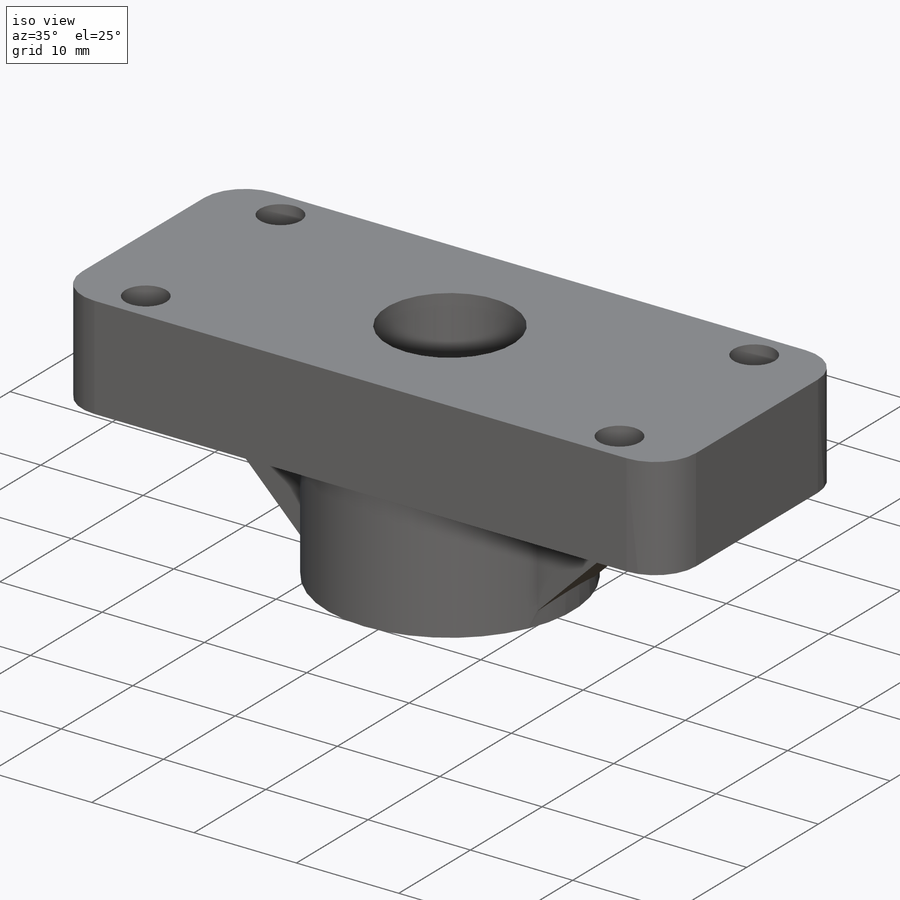
[diagram: iso view]
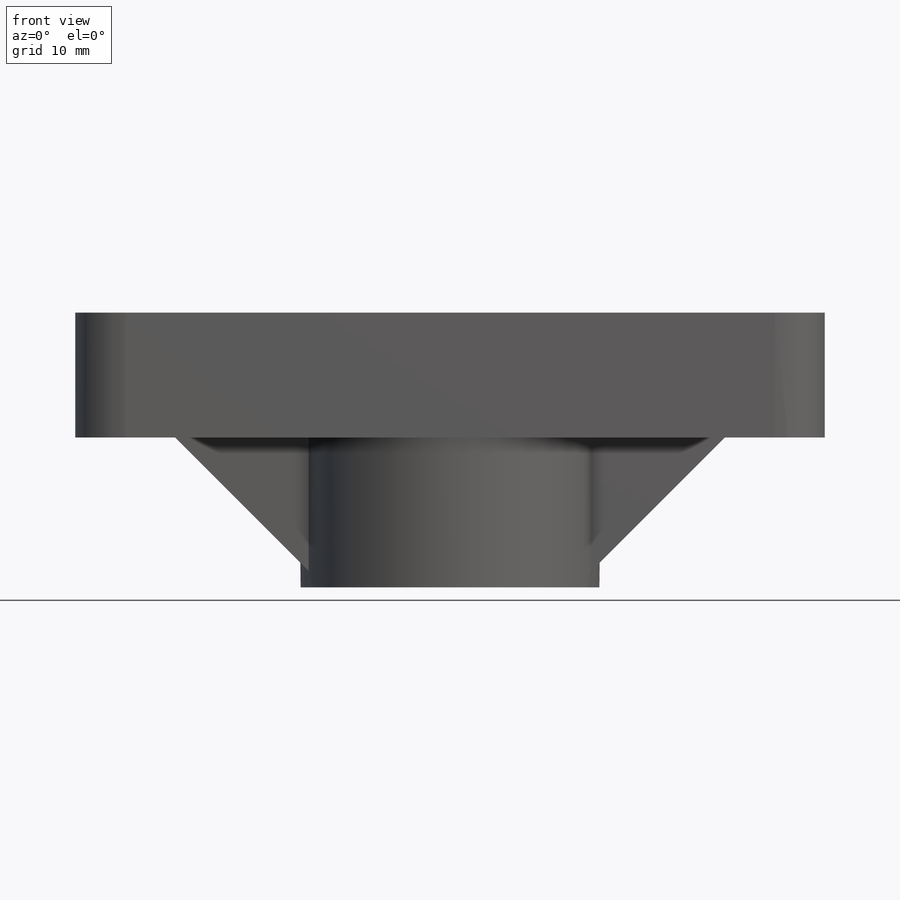
[diagram: front view]
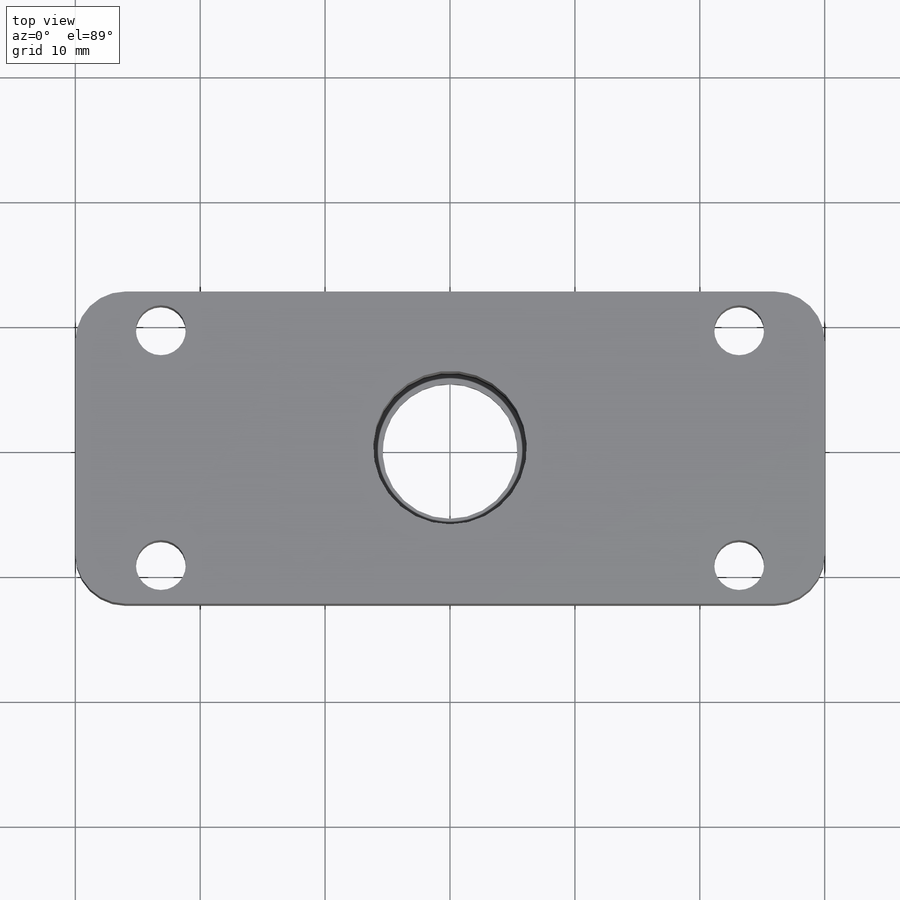
[diagram: top view]
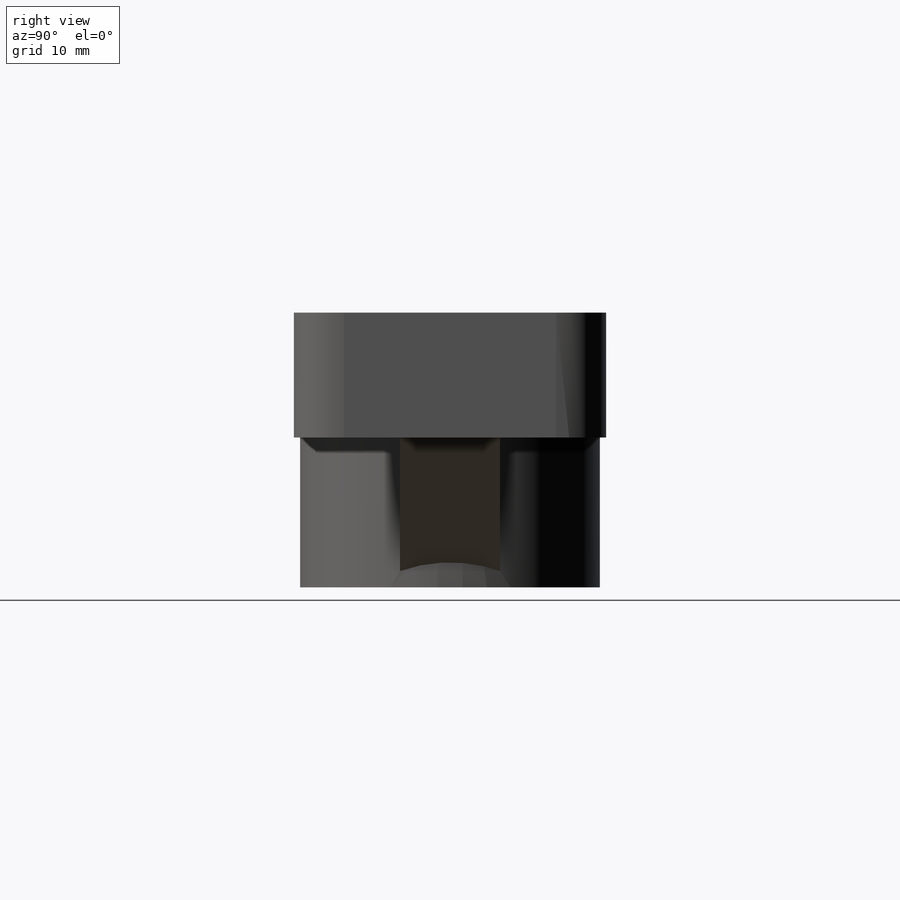
[diagram: right view]
SOLIDWORKS PART (.sldprt)
format: sldprt  version: not decoded by parser v0  size: 568,320 bytes
history: native  units: mm
features: sketch x5, extrude x2, cut_extrude x2, material x1, revolve x1, fillet x1, chamfer x1 (+11 scaffold rows collapsed)
feature tree (24):
  scaffold x11  (default folders/planes/origin — collapsed)
  material  "Material <not specified>"
  sketch  "Sketch1"  dims[D1=25.0mm D2=60.0mm D3=60.0mm]
  extrude  "Base"  Depth=10mm
  sketch  "Sketch2"  dims[D1=12.0mm D2=4.8mm D3=4.5mm D4=12.0mm D5=7.0mm]
  revolve  "Pen Catch"  Angle=360deg
  sketch  "Sketch5"  dims[D1=9.6mm]
  cut_extrude  "Pen Hole"  [1 undecoded]
  sketch  "Sketch4"  dims[c1.D1=~20.498868mm c2.D1=45.0deg c2.D2=10.0mm c2.D3=12.0mm]
  extrude  "Stab Fins"  Depth=4mm
  fillet  "Base Dec"  Radius=4mm
  sketch  "Sketch8"
  cut_extrude  "Cut-Extrude2"  [1 undecoded]
  chamfer  "Chamfer1"  Distance=2mm Angle=45deg
decode coverage: 9 of 12 modeling features carry decoded parameters
note: ~ marks probable driven/reference dimensions
note: 2 parameter values undecoded
note: suppression state not decoded; provenance and decode notes live in map.json
